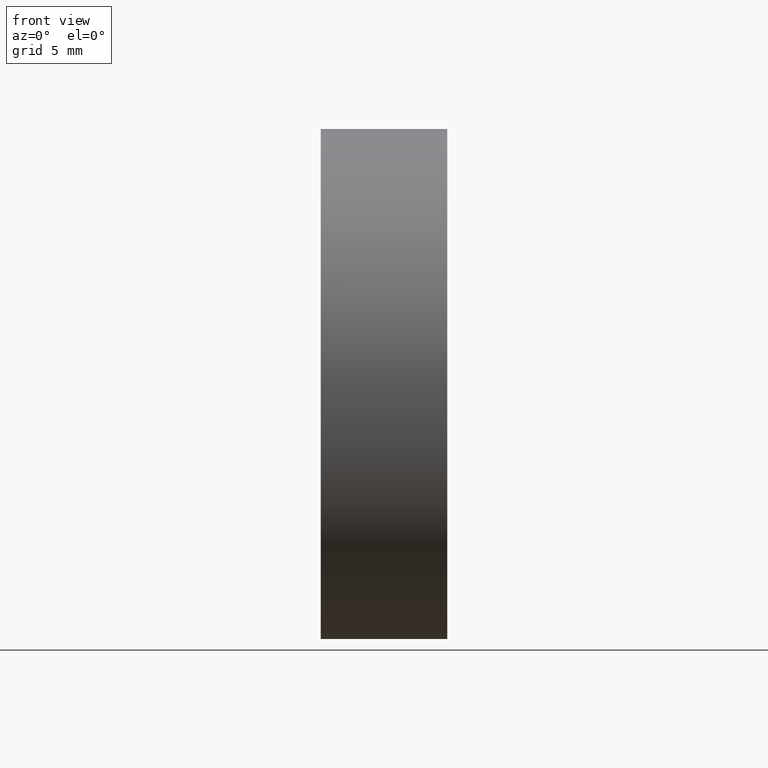
[diagram: clean part render]
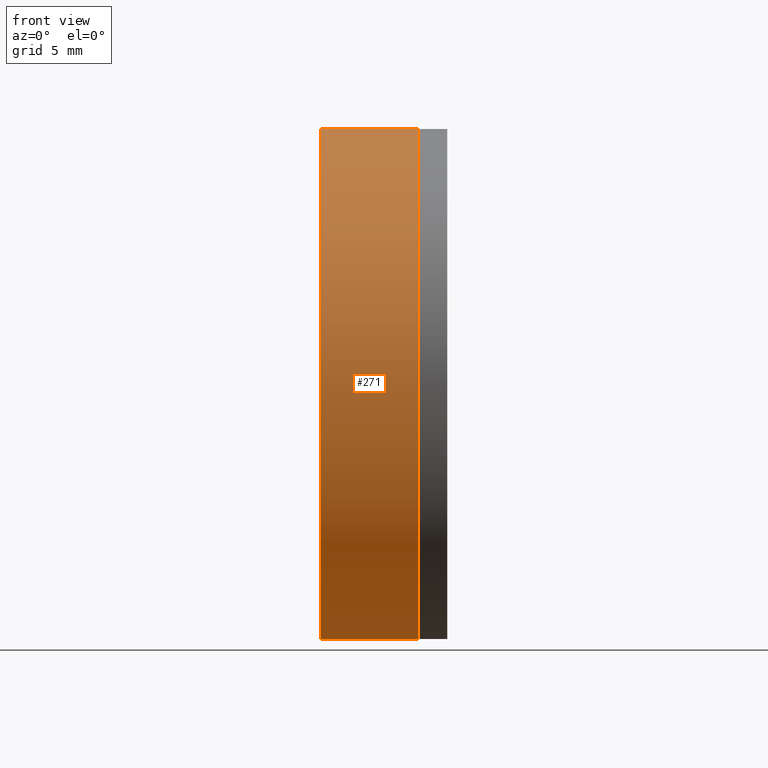
[diagram: same view with one face highlighted and labeled with its STEP entity id]
A machine part, front view. The second image highlights one B-rep face of the part: STEP entity #271.
In plain terms, the highlighted cylindrical surface (partial cylindrical patch) has radius 20 mm, axis along (-1, -0, 0).
Its self-contained STEP definition (entity closure, byte-faithful):
#22 = CARTESIAN_POINT ( 'NONE',  ( -0.8160621761658076700, 2.449293598294712000E-015, -20.00000000000004600 ) ) ;
#30 = CARTESIAN_POINT ( 'NONE',  ( 243.5932381383219400, 0.0000000000000000000, 19.99999999999998200 ) ) ;
#36 = CARTESIAN_POINT ( 'NONE',  ( -0.8160621761658039000, 0.0000000000000000000, 0.0000000000000000000 ) ) ;
#38 = CYLINDRICAL_SURFACE ( 'NONE', #167, 20.00000000000004600 ) ;
#55 = ORIENTED_EDGE ( 'NONE', *, *, #62, .T. ) ;
#61 = VECTOR ( 'NONE', #335, 1000.000000000000000 ) ;
#62 = EDGE_CURVE ( 'NONE', #73, #157, #90, .T. ) ;
#66 = FACE_OUTER_BOUND ( 'NONE', #105, .T. ) ;
#67 = AXIS2_PLACEMENT_3D ( 'NONE', #76, #260, #170 ) ;
#68 = ORIENTED_EDGE ( 'NONE', *, *, #125, .T. ) ;
#73 = VERTEX_POINT ( 'NONE', #180 ) ;
#75 = ORIENTED_EDGE ( 'NONE', *, *, #281, .F. ) ;
#76 = CARTESIAN_POINT ( 'NONE',  ( 243.5932381383219400, 0.0000000000000000000, -4.489726009679723200E-014 ) ) ;
#83 = DIRECTION ( 'NONE',  ( -1.000000000000000000, -0.0000000000000000000, 1.836970198721029400E-016 ) ) ;
#90 = LINE ( 'NONE', #262, #288 ) ;
#105 = EDGE_LOOP ( 'NONE', ( #75, #68, #55, #303 ) ) ;
#114 = VERTEX_POINT ( 'NONE', #268 ) ;
#125 = EDGE_CURVE ( 'NONE', #250, #73, #311, .T. ) ;
#127 = DIRECTION ( 'NONE',  ( -1.000000000000000000, -0.0000000000000000000, 1.836970198721029400E-016 ) ) ;
#132 = CIRCLE ( 'NONE', #67, 20.00000000000004600 ) ;
#135 = CARTESIAN_POINT ( 'NONE',  ( 251.2286233649336100, 2.449293598294712000E-015, -20.00000000000009200 ) ) ;
#157 = VERTEX_POINT ( 'NONE', #30 ) ;
#167 = AXIS2_PLACEMENT_3D ( 'NONE', #36, #210, #278 ) ;
#170 = DIRECTION ( 'NONE',  ( 0.0000000000000000000, 0.0000000000000000000, 1.000000000000000000 ) ) ;
#180 = CARTESIAN_POINT ( 'NONE',  ( 251.2286233649336100, 0.0000000000000000000, 20.00000000000000000 ) ) ;
#210 = DIRECTION ( 'NONE',  ( -1.000000000000000000, -0.0000000000000000000, 1.836970198721029400E-016 ) ) ;
#236 = AXIS2_PLACEMENT_3D ( 'NONE', #321, #83, #330 ) ;
#244 = EDGE_CURVE ( 'NONE', #114, #157, #132, .T. ) ;
#250 = VERTEX_POINT ( 'NONE', #135 ) ;
#260 = DIRECTION ( 'NONE',  ( -1.000000000000000000, -0.0000000000000000000, 1.836970198721029400E-016 ) ) ;
#262 = CARTESIAN_POINT ( 'NONE',  ( -0.8160621761658002300, 0.0000000000000000000, 20.00000000000004600 ) ) ;
#268 = CARTESIAN_POINT ( 'NONE',  ( 243.5932381383219400, 2.449293598294710100E-015, -20.00000000000004600 ) ) ;
#271 = ADVANCED_FACE ( 'NONE', ( #66 ), #38, .T. ) ;
#278 = DIRECTION ( 'NONE',  ( 1.843143693225353300E-016, 0.0000000000000000000, 1.000000000000000000 ) ) ;
#281 = EDGE_CURVE ( 'NONE', #250, #114, #302, .T. ) ;
#288 = VECTOR ( 'NONE', #127, 1000.000000000000000 ) ;
#302 = LINE ( 'NONE', #22, #61 ) ;
#303 = ORIENTED_EDGE ( 'NONE', *, *, #244, .F. ) ;
#311 = CIRCLE ( 'NONE', #236, 20.00000000000004600 ) ;
#321 = CARTESIAN_POINT ( 'NONE',  ( 251.2286233649336100, 0.0000000000000000000, -4.629985760850127900E-014 ) ) ;
#330 = DIRECTION ( 'NONE',  ( 0.0000000000000000000, 0.0000000000000000000, 1.000000000000000000 ) ) ;
#335 = DIRECTION ( 'NONE',  ( -1.000000000000000000, -0.0000000000000000000, 1.836970198721029400E-016 ) ) ;